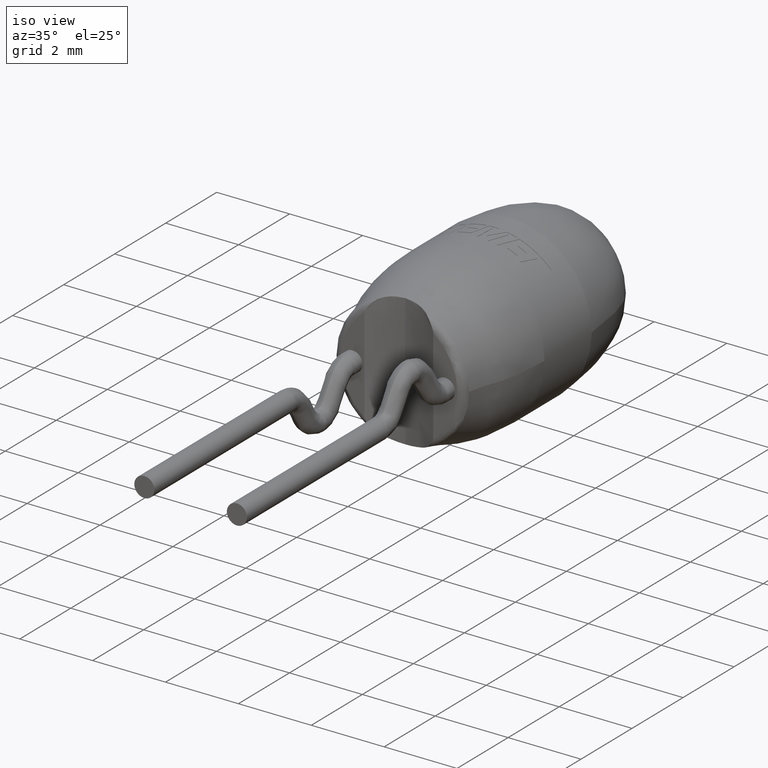
[diagram: clean part render]
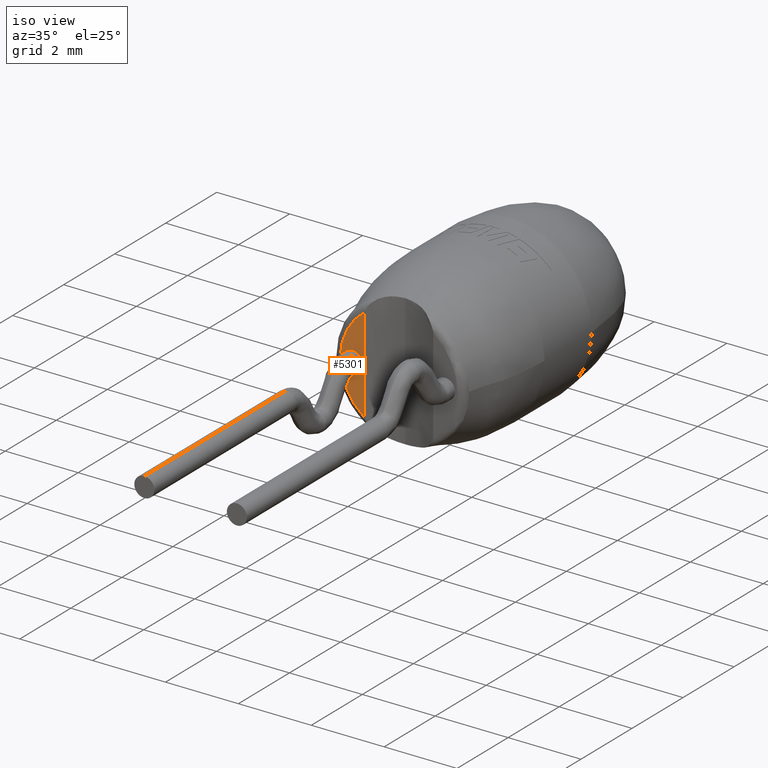
[diagram: same view with one face highlighted and labeled with its STEP entity id]
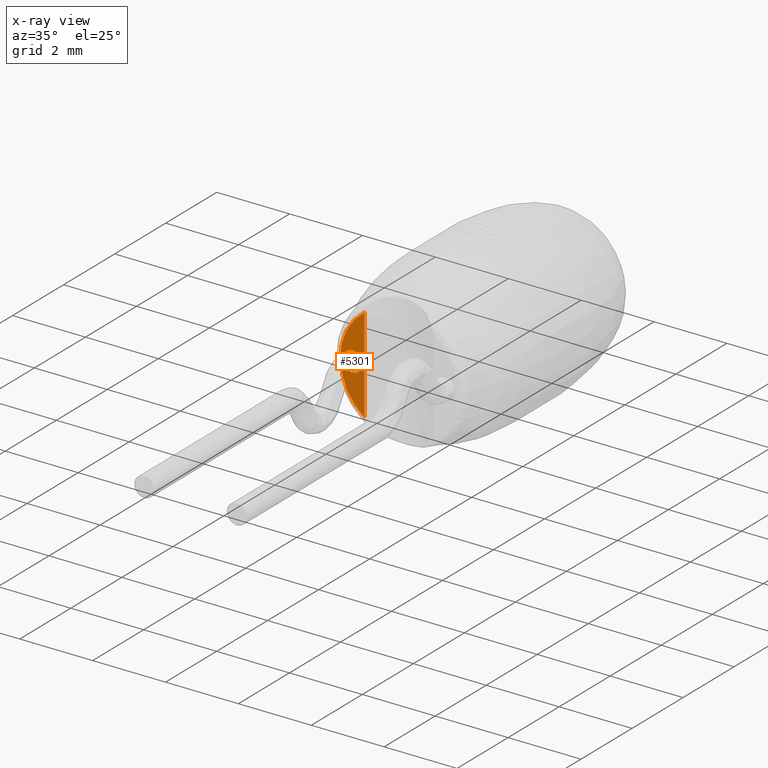
[diagram: x-ray of the same camera — body ghosted, the highlighted face saturated]
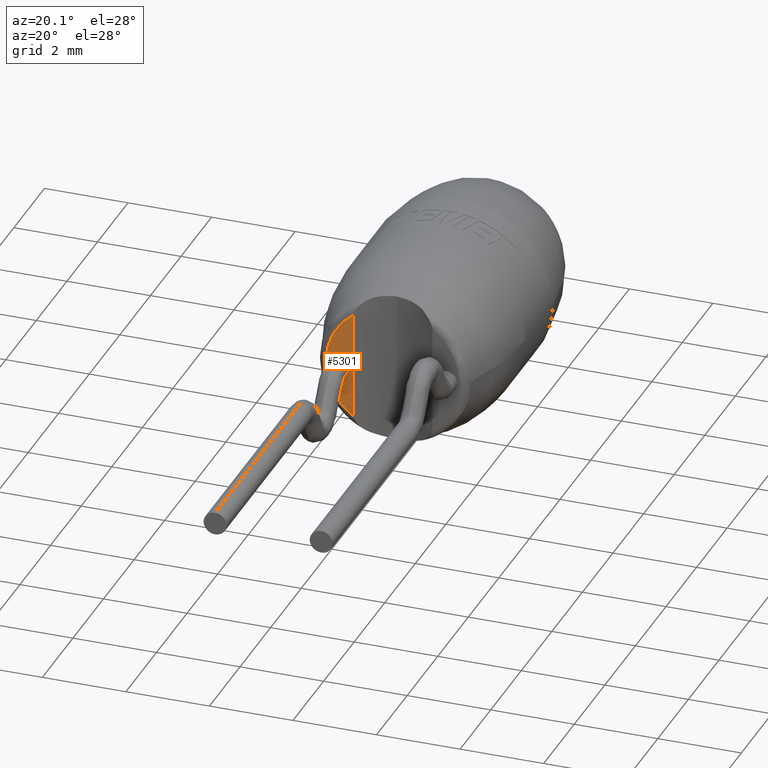
[diagram: same view with one face highlighted and labeled with its STEP entity id]
A machine part, iso view. The second image highlights one B-rep face of the part: STEP entity #5301.
The next image is the same camera in x-ray: the body ghosted, the highlighted face saturated — about 0% of this face is hidden behind the body in this view.
A second angle (auxiliary view) of the same face is appended — the face is thin or edge-on in the first view.
In plain terms, the highlighted planar face has unit normal (0, 1, 0).
Its self-contained STEP definition (entity closure, byte-faithful):
#6 = AXIS2_PLACEMENT_3D ( 'NONE', #2957, #918, #2985 ) ;
#71 = AXIS2_PLACEMENT_3D ( 'NONE', #4643, #3356, #3797 ) ;
#74 = CARTESIAN_POINT ( 'NONE',  ( -1.270000000000000000, 0.0000000000000000000, 0.0000000000000000000 ) ) ;
#126 = AXIS2_PLACEMENT_3D ( 'NONE', #2343, #2796, #1610 ) ;
#152 = CARTESIAN_POINT ( 'NONE',  ( -0.9450000000000004000, -8.034147796649942400E-017, 1.298703362207638500 ) ) ;
#639 = EDGE_LOOP ( 'NONE', ( #1401, #4263 ) ) ;
#918 = DIRECTION ( 'NONE',  ( -0.0000000000000000000, -1.000000000000000000, -0.0000000000000000000 ) ) ;
#1072 = VERTEX_POINT ( 'NONE', #4529 ) ;
#1144 = PLANE ( 'NONE',  #126 ) ;
#1205 = EDGE_LOOP ( 'NONE', ( #1763, #4410 ) ) ;
#1327 = DIRECTION ( 'NONE',  ( 0.0000000000000000000, -1.000000000000000000, 0.0000000000000000000 ) ) ;
#1333 = VERTEX_POINT ( 'NONE', #152 ) ;
#1401 = ORIENTED_EDGE ( 'NONE', *, *, #1681, .T. ) ;
#1610 = DIRECTION ( 'NONE',  ( 0.0000000000000000000, -0.0000000000000000000, 1.000000000000000000 ) ) ;
#1617 = EDGE_CURVE ( 'NONE', #1072, #2336, #4760, .T. ) ;
#1681 = EDGE_CURVE ( 'NONE', #1333, #2521, #4238, .T. ) ;
#1763 = ORIENTED_EDGE ( 'NONE', *, *, #1617, .F. ) ;
#1984 = EDGE_CURVE ( 'NONE', #2336, #1072, #3594, .T. ) ;
#2336 = VERTEX_POINT ( 'NONE', #4326 ) ;
#2343 = CARTESIAN_POINT ( 'NONE',  ( 0.0000000000000000000, 0.0000000000000000000, 0.0000000000000000000 ) ) ;
#2448 = VECTOR ( 'NONE', #4384, 1000.000000000000000 ) ;
#2521 = VERTEX_POINT ( 'NONE', #3153 ) ;
#2659 = FACE_BOUND ( 'NONE', #1205, .T. ) ;
#2705 = CARTESIAN_POINT ( 'NONE',  ( -0.9450000000000004000, -8.034147796649942400E-017, -2.250000000000000400 ) ) ;
#2796 = DIRECTION ( 'NONE',  ( 0.0000000000000000000, 1.000000000000000000, 0.0000000000000000000 ) ) ;
#2957 = CARTESIAN_POINT ( 'NONE',  ( 0.0000000000000000000, 0.0000000000000000000, 0.0000000000000000000 ) ) ;
#2985 = DIRECTION ( 'NONE',  ( 8.881784197001252300E-016, 0.0000000000000000000, 1.000000000000000000 ) ) ;
#3153 = CARTESIAN_POINT ( 'NONE',  ( -0.9450000000000004000, -8.034147796649942400E-017, -1.298703362207638300 ) ) ;
#3356 = DIRECTION ( 'NONE',  ( 0.0000000000000000000, -1.000000000000000000, 0.0000000000000000000 ) ) ;
#3357 = FACE_OUTER_BOUND ( 'NONE', #639, .T. ) ;
#3459 = AXIS2_PLACEMENT_3D ( 'NONE', #74, #1327, #3795 ) ;
#3594 = CIRCLE ( 'NONE', #3459, 0.2750000000000000200 ) ;
#3795 = DIRECTION ( 'NONE',  ( 0.0000000000000000000, 0.0000000000000000000, -1.000000000000000000 ) ) ;
#3797 = DIRECTION ( 'NONE',  ( 0.0000000000000000000, 0.0000000000000000000, -1.000000000000000000 ) ) ;
#4181 = LINE ( 'NONE', #2705, #2448 ) ;
#4238 = CIRCLE ( 'NONE', #6, 1.606130574707245000 ) ;
#4263 = ORIENTED_EDGE ( 'NONE', *, *, #4321, .T. ) ;
#4321 = EDGE_CURVE ( 'NONE', #2521, #1333, #4181, .T. ) ;
#4326 = CARTESIAN_POINT ( 'NONE',  ( -1.270000000000000000, 0.0000000000000000000, -0.2750000000000000200 ) ) ;
#4384 = DIRECTION ( 'NONE',  ( -0.0000000000000000000, -0.0000000000000000000, 1.000000000000000000 ) ) ;
#4410 = ORIENTED_EDGE ( 'NONE', *, *, #1984, .F. ) ;
#4529 = CARTESIAN_POINT ( 'NONE',  ( -1.270000000000000000, 0.0000000000000000000, 0.2750000000000000200 ) ) ;
#4643 = CARTESIAN_POINT ( 'NONE',  ( -1.270000000000000000, 0.0000000000000000000, 0.0000000000000000000 ) ) ;
#4760 = CIRCLE ( 'NONE', #71, 0.2750000000000000200 ) ;
#5301 = ADVANCED_FACE ( 'NONE', ( #2659, #3357 ), #1144, .F. ) ;